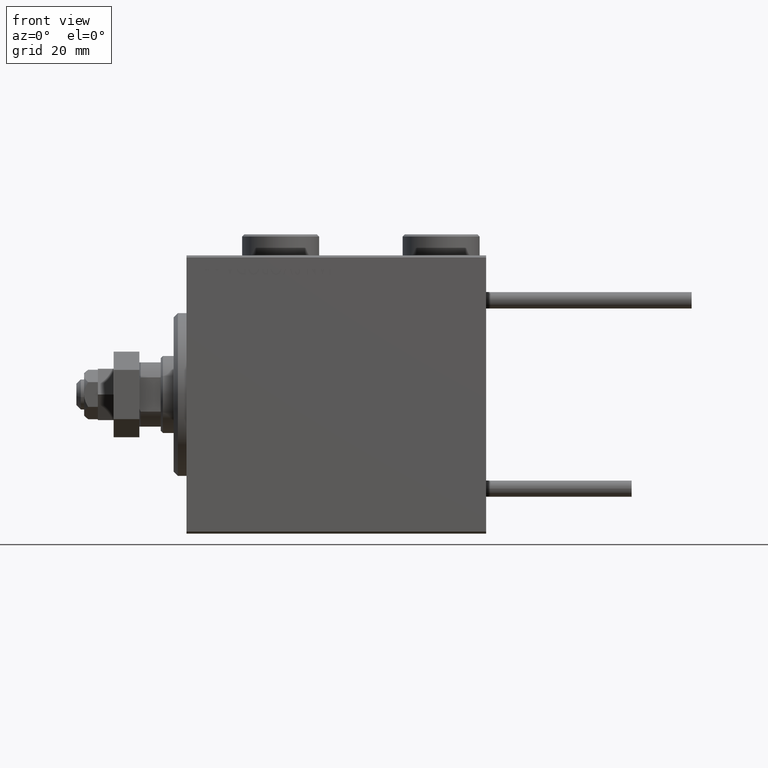
[diagram: clean part render]
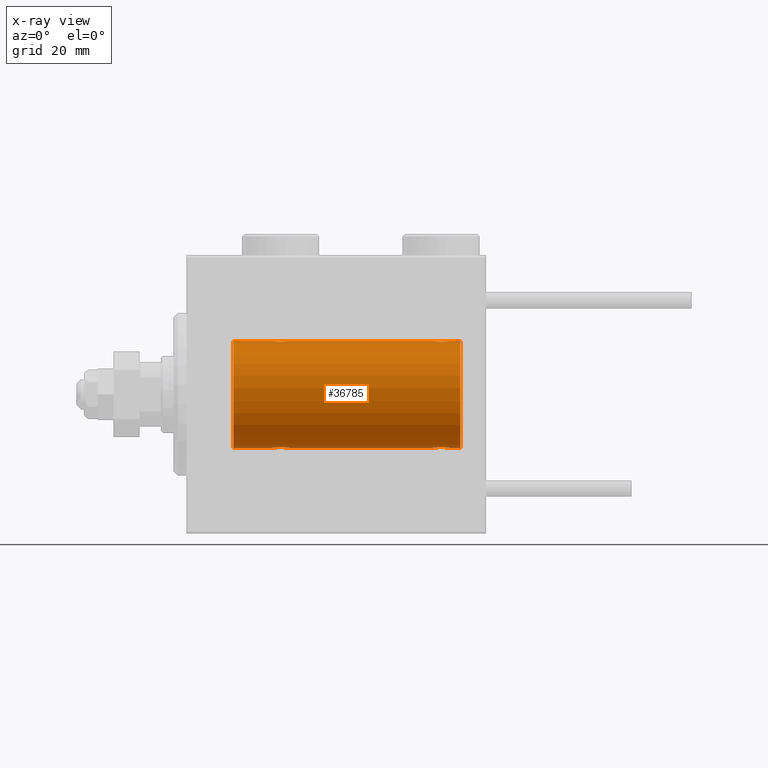
[diagram: x-ray — body ghosted, one internal face saturated and labeled with its STEP entity id]
A machine part, front view, then the same camera in x-ray: the body is ghosted and one INTERNAL B-rep face — a face not visible from any outside direction — is saturated and labeled: STEP entity #36785.
In plain terms, the highlighted cylindrical surface (partial cylindrical patch) has radius 12.5 mm, axis along (-1, -0, -0).
Its self-contained STEP definition (entity closure, byte-faithful):
#113 = CARTESIAN_POINT ( 'NONE',  ( 61.50000000000000711, -7.215738317004035941E-16, 12.50000000000000000 ) ) ;
#305 = LINE ( 'NONE', #12264, #52333 ) ;
#362 = CARTESIAN_POINT ( 'NONE',  ( 10.99999999999999645, 0.000000000000000000, 12.50000000000000000 ) ) ;
#760 = CARTESIAN_POINT ( 'NONE',  ( 57.55255659427669457, -0.5247436444070353589, 12.49130933415156441 ) ) ;
#791 = CYLINDRICAL_SURFACE ( 'NONE', #12924, 12.50000000000000000 ) ;
#945 = VERTEX_POINT ( 'NONE', #50204 ) ;
#1240 = CARTESIAN_POINT ( 'NONE',  ( 23.74662136620892383, -1.008535157355842538, 12.46157701909767646 ) ) ;
#1279 = EDGE_CURVE ( 'NONE', #48360, #1606, #36284, .T. ) ;
#1280 = CARTESIAN_POINT ( 'NONE',  ( 58.17700056892267924, -1.505544071529938632, 12.40934942683853670 ) ) ;
#1288 = VECTOR ( 'NONE', #21541, 1000.000000000000000 ) ;
#1510 = CARTESIAN_POINT ( 'NONE',  ( 24.00000000000000000, -0.2646816682749787430, 12.50000000000000178 ) ) ;
#1547 = CARTESIAN_POINT ( 'NONE',  ( 60.50099792098509255, -1.736403706023274651, 12.37902502246767966 ) ) ;
#1606 = VERTEX_POINT ( 'NONE', #31441 ) ;
#1773 = CARTESIAN_POINT ( 'NONE',  ( 20.67700056892266502, -1.505544071529935968, 12.40934942683853670 ) ) ;
#1807 = CARTESIAN_POINT ( 'NONE',  ( 58.85356103036409081, -1.897190184049188932, 12.35529285772521924 ) ) ;
#2122 = EDGE_CURVE ( 'NONE', #4107, #12798, #46385, .T. ) ;
#2235 = VERTEX_POINT ( 'NONE', #46363 ) ;
#2296 = CARTESIAN_POINT ( 'NONE',  ( 23.94665679898380617, -0.5275951738695671134, 12.49118442338578561 ) ) ;
#2334 = CARTESIAN_POINT ( 'NONE',  ( 59.23608626897564733, -1.986793270638198106, 12.34112317291865146 ) ) ;
#2703 = CARTESIAN_POINT ( 'NONE',  ( 19.99999999999999645, -3.213890523917628161E-15, -12.50000000000000000 ) ) ;
#3085 = CARTESIAN_POINT ( 'NONE',  ( 60.01961472357874783, -1.935716533151644381, -12.34923763528284724 ) ) ;
#3359 = CARTESIAN_POINT ( 'NONE',  ( 64.00000000000000000, 1.530808498934191521E-15, -12.50000000000000000 ) ) ;
#4107 = VERTEX_POINT ( 'NONE', #27990 ) ;
#4290 = LINE ( 'NONE', #12780, #48329 ) ;
#4375 = CARTESIAN_POINT ( 'NONE',  ( 59.36910032676577487, -2.000082296475570232, -12.33894933996983312 ) ) ;
#5048 = ORIENTED_EDGE ( 'NONE', *, *, #24487, .T. ) ;
#5226 = CARTESIAN_POINT ( 'NONE',  ( 21.11125274202960256, -1.796480516834690233, 12.37033750336835958 ) ) ;
#5267 = CARTESIAN_POINT ( 'NONE',  ( 57.91018909771712231, -1.220538259806350112, 12.44075068685996932 ) ) ;
#5497 = CARTESIAN_POINT ( 'NONE',  ( 24.00000000000000000, -4.527848004210791175E-16, 12.50000000000000000 ) ) ;
#6023 = CARTESIAN_POINT ( 'NONE',  ( 22.13089967323422869, -2.000082296475568011, 12.33894933996983134 ) ) ;
#6278 = CARTESIAN_POINT ( 'NONE',  ( 22.64425278797729391, -1.897913903092048438, 12.35518060345725111 ) ) ;
#6389 = VERTEX_POINT ( 'NONE', #2703 ) ;
#6579 = ORIENTED_EDGE ( 'NONE', *, *, #21406, .T. ) ;
#6710 = CARTESIAN_POINT ( 'NONE',  ( 23.00345574076691335, -1.734959850168410256, -12.37922718965050528 ) ) ;
#7044 = CARTESIAN_POINT ( 'NONE',  ( 60.14643896963591629, -1.897190184049190043, -12.35529285772521391 ) ) ;
#7292 = ORIENTED_EDGE ( 'NONE', *, *, #42447, .T. ) ;
#7566 = CARTESIAN_POINT ( 'NONE',  ( 61.44744340572331254, -0.5247436444070329165, -12.49130933415156797 ) ) ;
#7738 = CARTESIAN_POINT ( 'NONE',  ( 23.22027149897420628, -1.589951752150275732, -12.39868561261689273 ) ) ;
#8081 = CARTESIAN_POINT ( 'NONE',  ( 60.82299943107732787, -1.505544071529934858, -12.40934942683853492 ) ) ;
#8345 = CARTESIAN_POINT ( 'NONE',  ( 59.63340250451296498, -1.999916920503821194, -12.33897614545467825 ) ) ;
#8376 = VERTEX_POINT ( 'NONE', #113 ) ;
#8761 = LINE ( 'NONE', #25262, #1288 ) ;
#8785 = DIRECTION ( 'NONE',  ( -1.000000000000000000, -0.000000000000000000, -0.000000000000000000 ) ) ;
#9406 = CARTESIAN_POINT ( 'NONE',  ( 57.50000000000000000, -7.533308568696040923E-15, -12.50000000000000000 ) ) ;
#9772 = CARTESIAN_POINT ( 'NONE',  ( 59.63089967323423934, -2.000082296475567567, 12.33894933996983134 ) ) ;
#10030 = CARTESIAN_POINT ( 'NONE',  ( 61.44665679898378130, -0.5275951738695680016, 12.49118442338578205 ) ) ;
#10290 = CARTESIAN_POINT ( 'NONE',  ( 61.09744774691021263, -1.231226695485369671, 12.44059298055987917 ) ) ;
#10552 = CARTESIAN_POINT ( 'NONE',  ( 60.82116712851446749, -1.507135374967701003, 12.40915432986587419 ) ) ;
#11308 = DIRECTION ( 'NONE',  ( -1.000000000000000000, -0.000000000000000000, -0.000000000000000000 ) ) ;
#11351 = EDGE_CURVE ( 'NONE', #2235, #6389, #17115, .T. ) ;
#11734 = CARTESIAN_POINT ( 'NONE',  ( 23.50722151467992660, -1.321088093821078502, -12.43033959299025248 ) ) ;
#12264 = CARTESIAN_POINT ( 'NONE',  ( 64.00000000000000000, 0.000000000000000000, 12.50000000000000000 ) ) ;
#12337 = CARTESIAN_POINT ( 'NONE',  ( 57.75337863379106551, -1.008535157355846090, -12.46157701909767290 ) ) ;
#12780 = CARTESIAN_POINT ( 'NONE',  ( 64.00000000000000000, 1.530808498934191521E-15, -12.50000000000000000 ) ) ;
#12798 = VERTEX_POINT ( 'NONE', #24382 ) ;
#12924 = AXIS2_PLACEMENT_3D ( 'NONE', #17529, #17012, #13530 ) ;
#13133 = CARTESIAN_POINT ( 'NONE',  ( 59.23906502714393696, -1.987194304939080336, -12.34105826212745960 ) ) ;
#13233 = CARTESIAN_POINT ( 'NONE',  ( 57.50000000000000000, -7.266434456262306043E-23, 12.50000000000000000 ) ) ;
#13399 = CARTESIAN_POINT ( 'NONE',  ( 58.49900207901491456, -1.736403706023276650, -12.37902502246767789 ) ) ;
#13460 = CARTESIAN_POINT ( 'NONE',  ( 20.20214393531741237, -0.8858253204748024467, 12.46915613403961309 ) ) ;
#13530 = DIRECTION ( 'NONE',  ( 0.000000000000000000, 0.000000000000000000, 1.000000000000000000 ) ) ;
#13719 = CARTESIAN_POINT ( 'NONE',  ( 22.26093497285607370, -1.987194304939079448, 12.34105826212746138 ) ) ;
#13983 = CARTESIAN_POINT ( 'NONE',  ( 21.48038527642126283, -1.935716533151644825, 12.34923763528284724 ) ) ;
#14284 = CARTESIAN_POINT ( 'NONE',  ( 58.61125274202960611, -1.796480516834688679, 12.37033750336835425 ) ) ;
#14380 = ORIENTED_EDGE ( 'NONE', *, *, #24442, .F. ) ;
#14609 = DIRECTION ( 'NONE',  ( -1.000000000000000000, 0.000000000000000000, 0.000000000000000000 ) ) ;
#14678 = CARTESIAN_POINT ( 'NONE',  ( 22.88874725797039389, -1.796480516834687347, -12.37033750336835247 ) ) ;
#14796 = CARTESIAN_POINT ( 'NONE',  ( 60.01693726697627085, -1.936441098420706775, 12.34912369794528608 ) ) ;
#16333 = CARTESIAN_POINT ( 'NONE',  ( 58.85574721202270609, -1.897913903092051324, -12.35518060345725289 ) ) ;
#16594 = CARTESIAN_POINT ( 'NONE',  ( 19.99999999999999645, -7.265724481447607133E-23, 12.50000000000000000 ) ) ;
#17012 = DIRECTION ( 'NONE',  ( -1.000000000000000000, -0.000000000000000000, -0.000000000000000000 ) ) ;
#17115 = B_SPLINE_CURVE_WITH_KNOTS ( 'NONE', 3,
 ( #23720, #19723, #31944, #35913, #52132, #48158, #11734, #27946, #7738, #6710, #14678, #30900, #18948, #35144, #48681, #32207, #24500, #25025, #36980, #41235, #28744, #29269, #45495, #20511, #28203, #36184, #21050, #28475 ),
 .UNSPECIFIED., .F., .F.,
 ( 4, 2, 2, 2, 2, 2, 2, 2, 2, 2, 2, 2, 2, 4 ),
 ( 0.006262980370572176700, 0.007045658964677373355, 0.007436998261729973851, 0.007828337558782575215, 0.008219676855835175711, 0.008611016152887776207, 0.009002355449940376703, 0.009393694746992977199, 0.009785034044045577695, 0.01017637334109817646, 0.01056771263815077869, 0.01095905193520337745, 0.01174173052930858711, 0.01252440912341379504 ),
 .UNSPECIFIED. ) ;
#17397 = CARTESIAN_POINT ( 'NONE',  ( 58.17883287148557514, -1.507135374967702557, -12.40915432986587241 ) ) ;
#17458 = CARTESIAN_POINT ( 'NONE',  ( 19.99999999999999289, -0.2612140938986765581, 12.50000000000000000 ) ) ;
#17497 = CARTESIAN_POINT ( 'NONE',  ( 58.27972850102579372, -1.589951752150273068, 12.39868561261688917 ) ) ;
#17529 = CARTESIAN_POINT ( 'NONE',  ( 64.00000000000000000, 0.000000000000000000, 0.000000000000000000 ) ) ;
#18015 = EDGE_CURVE ( 'NONE', #945, #1606, #48461, .T. ) ;
#18282 = CARTESIAN_POINT ( 'NONE',  ( 60.38616153879433313, -1.797736511708064144, 12.37015393445320655 ) ) ;
#18948 = CARTESIAN_POINT ( 'NONE',  ( 22.51961472357873717, -1.935716533151642826, -12.34923763528285257 ) ) ;
#19300 = CARTESIAN_POINT ( 'NONE',  ( 59.76391373102438109, -1.986793270638201214, -12.34112317291865324 ) ) ;
#19723 = CARTESIAN_POINT ( 'NONE',  ( 24.00000000000000711, -0.2612140938986747818, -12.50000000000000533 ) ) ;
#20511 = CARTESIAN_POINT ( 'NONE',  ( 20.40255225308977671, -1.231226695485369893, -12.44059298055988627 ) ) ;
#21050 = CARTESIAN_POINT ( 'NONE',  ( 20.00000000000000000, -0.2646816682749822958, -12.50000000000000000 ) ) ;
#21391 = ORIENTED_EDGE ( 'NONE', *, *, #22484, .F. ) ;
#21406 = EDGE_CURVE ( 'NONE', #12798, #2235, #8761, .T. ) ;
#21443 = CARTESIAN_POINT ( 'NONE',  ( 64.00000000000000000, 0.000000000000000000, 12.50000000000000000 ) ) ;
#21449 = CARTESIAN_POINT ( 'NONE',  ( 21.73608626897565799, -1.986793270638199438, 12.34112317291865502 ) ) ;
#21487 = CARTESIAN_POINT ( 'NONE',  ( 57.99277848532008051, -1.321088093821082721, 12.43033959299025426 ) ) ;
#21541 = DIRECTION ( 'NONE',  ( -1.000000000000000000, -0.000000000000000000, -0.000000000000000000 ) ) ;
#21709 = CIRCLE ( 'NONE', #51410, 12.50000000000000000 ) ;
#22484 = EDGE_CURVE ( 'NONE', #25152, #23909, #21709, .T. ) ;
#22504 = CARTESIAN_POINT ( 'NONE',  ( 23.32116712851443907, -1.507135374967700558, 12.40915432986587064 ) ) ;
#22544 = CARTESIAN_POINT ( 'NONE',  ( 61.24662136620892028, -1.008535157355842760, 12.46157701909767468 ) ) ;
#22572 = DIRECTION ( 'NONE',  ( -1.000000000000000000, -0.000000000000000000, -0.000000000000000000 ) ) ;
#23593 = VECTOR ( 'NONE', #22572, 1000.000000000000000 ) ;
#23720 = CARTESIAN_POINT ( 'NONE',  ( 24.00000000000000000, 1.530808426277417854E-15, -12.50000000000000000 ) ) ;
#23909 = VERTEX_POINT ( 'NONE', #21443 ) ;
#23980 = DIRECTION ( 'NONE',  ( 0.000000000000000000, 0.000000000000000000, 1.000000000000000000 ) ) ;
#24382 = CARTESIAN_POINT ( 'NONE',  ( 57.50000000000000000, -7.533308568696040923E-15, -12.50000000000000000 ) ) ;
#24442 = EDGE_CURVE ( 'NONE', #23909, #8376, #305, .T. ) ;
#24487 = EDGE_CURVE ( 'NONE', #37644, #25235, #30265, .T. ) ;
#24500 = CARTESIAN_POINT ( 'NONE',  ( 21.73906502714393341, -1.987194304939077671, -12.34105826212746138 ) ) ;
#24768 = DIRECTION ( 'NONE',  ( -1.000000000000000000, 0.000000000000000000, 0.000000000000000000 ) ) ;
#24842 = CARTESIAN_POINT ( 'NONE',  ( 57.50000000000000000, -0.2646816682749856819, -12.50000000000000711 ) ) ;
#25025 = CARTESIAN_POINT ( 'NONE',  ( 21.48306273302371494, -1.936441098420706997, -12.34912369794528431 ) ) ;
#25152 = VERTEX_POINT ( 'NONE', #34433 ) ;
#25235 = VERTEX_POINT ( 'NONE', #362 ) ;
#25262 = CARTESIAN_POINT ( 'NONE',  ( 64.00000000000000000, 1.530808498934191521E-15, -12.50000000000000000 ) ) ;
#25629 = CARTESIAN_POINT ( 'NONE',  ( 58.98306273302370784, -1.936441098420709883, -12.34912369794528786 ) ) ;
#25694 = CARTESIAN_POINT ( 'NONE',  ( 20.49277848532005919, -1.321088093821079834, 12.43033959299025071 ) ) ;
#25965 = CARTESIAN_POINT ( 'NONE',  ( 20.99654425923307954, -1.734959850168413587, 12.37922718965051061 ) ) ;
#26225 = CARTESIAN_POINT ( 'NONE',  ( 20.05255659427670167, -0.5247436444070346928, 12.49130933415156619 ) ) ;
#26515 = CARTESIAN_POINT ( 'NONE',  ( 60.14425278797731522, -1.897913903092049548, 12.35518060345725289 ) ) ;
#26541 = LINE ( 'NONE', #42756, #23593 ) ;
#27252 = CARTESIAN_POINT ( 'NONE',  ( 60.38874725797041521, -1.796480516834690455, -12.37033750336835780 ) ) ;
#27354 = EDGE_CURVE ( 'NONE', #48360, #25235, #26541, .T. ) ;
#27946 = CARTESIAN_POINT ( 'NONE',  ( 23.32299943107732432, -1.505544071529935080, -12.40934942683853848 ) ) ;
#27990 = CARTESIAN_POINT ( 'NONE',  ( 61.50000000000000711, 1.530808426270318106E-15, -12.50000000000000000 ) ) ;
#28203 = CARTESIAN_POINT ( 'NONE',  ( 20.25337863379106551, -1.008535157355840761, -12.46157701909767646 ) ) ;
#28475 = CARTESIAN_POINT ( 'NONE',  ( 19.99999999999999645, -3.213890523917628161E-15, -12.50000000000000000 ) ) ;
#28744 = CARTESIAN_POINT ( 'NONE',  ( 20.99900207901491811, -1.736403706023270654, -12.37902502246767966 ) ) ;
#29269 = CARTESIAN_POINT ( 'NONE',  ( 20.78145880458060901, -1.591305132013878021, -12.39851226212236313 ) ) ;
#29349 = CARTESIAN_POINT ( 'NONE',  ( 58.61383846120568109, -1.797736511708066143, -12.37015393445320655 ) ) ;
#29448 = CARTESIAN_POINT ( 'NONE',  ( 57.50000000000001421, -0.2612140938986763361, 12.50000000000000355 ) ) ;
#29619 = CARTESIAN_POINT ( 'NONE',  ( 57.90255225308975895, -1.231226695485371669, -12.44059298055988094 ) ) ;
#29679 = CARTESIAN_POINT ( 'NONE',  ( 22.51693726697628151, -1.936441098420708773, 12.34912369794528608 ) ) ;
#29786 = CARTESIAN_POINT ( 'NONE',  ( 64.00000000000000000, 0.000000000000000000, 0.000000000000000000 ) ) ;
#30233 = CARTESIAN_POINT ( 'NONE',  ( 60.71854119541938388, -1.591305132013881796, 12.39851226212235957 ) ) ;
#30265 = CIRCLE ( 'NONE', #50644, 12.50000000000000000 ) ;
#30900 = CARTESIAN_POINT ( 'NONE',  ( 22.64643896963591985, -1.897190184049187378, -12.35529285772521924 ) ) ;
#31171 = ORIENTED_EDGE ( 'NONE', *, *, #11351, .T. ) ;
#31252 = CARTESIAN_POINT ( 'NONE',  ( 60.50345574076694533, -1.734959850168411366, -12.37922718965050883 ) ) ;
#31441 = CARTESIAN_POINT ( 'NONE',  ( 24.00000000000000000, -4.527848004210791175E-16, 12.50000000000000000 ) ) ;
#31508 = CARTESIAN_POINT ( 'NONE',  ( 61.23563078019578398, -1.002396200863560738, -12.46022444231050841 ) ) ;
#31944 = CARTESIAN_POINT ( 'NONE',  ( 23.94744340572329833, -0.5247436444070328054, -12.49130933415156619 ) ) ;
#32207 = CARTESIAN_POINT ( 'NONE',  ( 21.86910032676576421, -2.000082296475566679, -12.33894933996983490 ) ) ;
#33013 = DIRECTION ( 'NONE',  ( -1.000000000000000000, -0.000000000000000000, -0.000000000000000000 ) ) ;
#33089 = CARTESIAN_POINT ( 'NONE',  ( 57.55334320101621159, -0.5275951738695725535, -12.49118442338578561 ) ) ;
#33187 = CARTESIAN_POINT ( 'NONE',  ( 57.70214393531741592, -0.8858253204748025578, 12.46915613403960954 ) ) ;
#33675 = CARTESIAN_POINT ( 'NONE',  ( 23.00099792098508189, -1.736403706023272431, 12.37902502246767966 ) ) ;
#34188 = CARTESIAN_POINT ( 'NONE',  ( 21.35356103036408371, -1.897190184049189599, 12.35529285772521391 ) ) ;
#34433 = CARTESIAN_POINT ( 'NONE',  ( 64.00000000000000000, 1.530808498934191521E-15, -12.50000000000000000 ) ) ;
#34576 = EDGE_CURVE ( 'NONE', #6389, #37644, #47738, .T. ) ;
#35144 = CARTESIAN_POINT ( 'NONE',  ( 22.26391373102435622, -1.986793270638196551, -12.34112317291864791 ) ) ;
#35652 = ORIENTED_EDGE ( 'NONE', *, *, #47352, .T. ) ;
#35913 = CARTESIAN_POINT ( 'NONE',  ( 23.79785606468258052, -0.8858253204748003373, -12.46915613403960954 ) ) ;
#36184 = CARTESIAN_POINT ( 'NONE',  ( 20.05334320101619738, -0.5275951738695662252, -12.49118442338578561 ) ) ;
#36264 = CARTESIAN_POINT ( 'NONE',  ( 61.50000000000000711, 1.530808426270318106E-15, -12.50000000000000000 ) ) ;
#36284 = B_SPLINE_CURVE_WITH_KNOTS ( 'NONE', 3,
 ( #41904, #17458, #26225, #13460, #46423, #50401, #25694, #1773, #49885, #25965, #5226, #34188, #13983, #21449, #37646, #6023, #13719, #29679, #6278, #42430, #33675, #38432, #22504, #38697, #1240, #2296, #1510, #5497 ),
 .UNSPECIFIED., .F., .F.,
 ( 4, 2, 2, 2, 2, 2, 2, 2, 2, 2, 2, 2, 2, 4 ),
 ( 0.006262980370572172363, 0.007045658964677369886, 0.007436998261729971249, 0.007828337558782571745, 0.008219676855835172241, 0.008611016152887774472, 0.009002355449940373233, 0.009393694746992975464, 0.009785034044045575960, 0.01017637334109817646, 0.01056771263815077869, 0.01095905193520337918, 0.01174173052930858538, 0.01252440912341379504 ),
 .UNSPECIFIED. ) ;
#36458 = CARTESIAN_POINT ( 'NONE',  ( 10.99999999999999645, 0.000000000000000000, 0.000000000000000000 ) ) ;
#36527 = CARTESIAN_POINT ( 'NONE',  ( 60.72027149897421339, -1.589951752150274844, -12.39868561261689273 ) ) ;
#36785 = ADVANCED_FACE ( 'NONE', ( #37194 ), #791, .F. ) ;
#36980 = CARTESIAN_POINT ( 'NONE',  ( 21.35574721202270254, -1.897913903092047327, -12.35518060345725289 ) ) ;
#37194 = FACE_OUTER_BOUND ( 'NONE', #40836, .T. ) ;
#37644 = VERTEX_POINT ( 'NONE', #44592 ) ;
#37646 = CARTESIAN_POINT ( 'NONE',  ( 21.86659749548704212, -1.999916920503820306, 12.33897614545467647 ) ) ;
#38432 = CARTESIAN_POINT ( 'NONE',  ( 23.21854119541938033, -1.591305132013879131, 12.39851226212235957 ) ) ;
#38697 = CARTESIAN_POINT ( 'NONE',  ( 23.59744774691023039, -1.231226695485369893, 12.44059298055988272 ) ) ;
#40208 = B_SPLINE_CURVE_WITH_KNOTS ( 'NONE', 3,
 ( #13233, #29448, #760, #33187, #45677, #5267, #21487, #1280, #17497, #45942, #14284, #1807, #50439, #2334, #46201, #9772, #41943, #14796, #26515, #18282, #1547, #30233, #10552, #10290, #22544, #10030, #46458, #46717 ),
 .UNSPECIFIED., .F., .F.,
 ( 4, 2, 2, 2, 2, 2, 2, 2, 2, 2, 2, 2, 2, 4 ),
 ( 0.006262980370572174098, 0.007045658964677370753, 0.007436998261729972984, 0.007828337558782575215, 0.008219676855835175711, 0.008611016152887777941, 0.009002355449940380172, 0.009393694746992982403, 0.009785034044045584634, 0.01017637334109818686, 0.01056771263815078910, 0.01095905193520338959, 0.01174173052930859232, 0.01252440912341379678 ),
 .UNSPECIFIED. ) ;
#40212 = DIRECTION ( 'NONE',  ( -1.000000000000000000, -0.000000000000000000, -0.000000000000000000 ) ) ;
#40766 = VECTOR ( 'NONE', #11308, 1000.000000000000000 ) ;
#40836 = EDGE_LOOP ( 'NONE', ( #21391, #7292, #50926, #6579, #31171, #47922, #5048, #44352, #42352, #50336, #35652, #14380 ) ) ;
#41057 = CARTESIAN_POINT ( 'NONE',  ( 58.28145880458064454, -1.591305132013884238, -12.39851226212236313 ) ) ;
#41235 = CARTESIAN_POINT ( 'NONE',  ( 21.11383846120566332, -1.797736511708062368, -12.37015393445320122 ) ) ;
#41904 = CARTESIAN_POINT ( 'NONE',  ( 19.99999999999999645, -7.265724481447607133E-23, 12.50000000000000000 ) ) ;
#41943 = CARTESIAN_POINT ( 'NONE',  ( 59.76093497285608436, -1.987194304939078116, 12.34105826212746138 ) ) ;
#42352 = ORIENTED_EDGE ( 'NONE', *, *, #1279, .T. ) ;
#42430 = CARTESIAN_POINT ( 'NONE',  ( 22.88616153879432602, -1.797736511708064144, 12.37015393445320299 ) ) ;
#42447 = EDGE_CURVE ( 'NONE', #25152, #4107, #4290, .T. ) ;
#42756 = CARTESIAN_POINT ( 'NONE',  ( 64.00000000000000000, 0.000000000000000000, 12.50000000000000000 ) ) ;
#43949 = CARTESIAN_POINT ( 'NONE',  ( 64.00000000000000000, 0.000000000000000000, 12.50000000000000000 ) ) ;
#43988 = CARTESIAN_POINT ( 'NONE',  ( 61.50000000000000711, -0.2612140938986743932, -12.50000000000000000 ) ) ;
#44352 = ORIENTED_EDGE ( 'NONE', *, *, #27354, .F. ) ;
#44508 = CARTESIAN_POINT ( 'NONE',  ( 61.00722151467995502, -1.321088093821077614, -12.43033959299025248 ) ) ;
#44592 = CARTESIAN_POINT ( 'NONE',  ( 10.99999999999999645, 1.530808498934191521E-15, -12.50000000000000000 ) ) ;
#45495 = CARTESIAN_POINT ( 'NONE',  ( 20.67883287148555382, -1.507135374967699670, -12.40915432986587064 ) ) ;
#45677 = CARTESIAN_POINT ( 'NONE',  ( 57.76436921980423733, -1.002396200863562736, 12.46022444231050663 ) ) ;
#45942 = CARTESIAN_POINT ( 'NONE',  ( 58.49654425923307599, -1.734959850168409812, 12.37922718965050706 ) ) ;
#46201 = CARTESIAN_POINT ( 'NONE',  ( 59.36659749548705634, -1.999916920503820750, 12.33897614545467469 ) ) ;
#46363 = CARTESIAN_POINT ( 'NONE',  ( 24.00000000000000000, 1.530808426277417854E-15, -12.50000000000000000 ) ) ;
#46385 = B_SPLINE_CURVE_WITH_KNOTS ( 'NONE', 3,
 ( #36264, #43988, #7566, #48498, #31508, #47461, #44508, #8081, #36527, #31252, #27252, #7044, #3085, #19300, #8345, #4375, #13133, #25629, #16333, #29349, #13399, #41057, #17397, #29619, #12337, #33089, #24842, #9406 ),
 .UNSPECIFIED., .F., .F.,
 ( 4, 2, 2, 2, 2, 2, 2, 2, 2, 2, 2, 2, 2, 4 ),
 ( 0.006262980370572173230, 0.007045658964677369018, 0.007436998261729971249, 0.007828337558782573480, 0.008219676855835175711, 0.008611016152887777941, 0.009002355449940380172, 0.009393694746992982403, 0.009785034044045584634, 0.01017637334109818686, 0.01056771263815078910, 0.01095905193520339133, 0.01174173052930859579, 0.01252440912341380025 ),
 .UNSPECIFIED. ) ;
#46423 = CARTESIAN_POINT ( 'NONE',  ( 20.26436921980423023, -1.002396200863561404, 12.46022444231050841 ) ) ;
#46458 = CARTESIAN_POINT ( 'NONE',  ( 61.50000000000000000, -0.2646816682749791316, 12.50000000000000000 ) ) ;
#46717 = CARTESIAN_POINT ( 'NONE',  ( 61.50000000000000711, -7.215738317004035941E-16, 12.50000000000000000 ) ) ;
#47352 = EDGE_CURVE ( 'NONE', #945, #8376, #40208, .T. ) ;
#47461 = CARTESIAN_POINT ( 'NONE',  ( 61.08981090228289901, -1.220538259806349446, -12.44075068685996932 ) ) ;
#47738 = LINE ( 'NONE', #3359, #40766 ) ;
#47922 = ORIENTED_EDGE ( 'NONE', *, *, #34576, .T. ) ;
#48158 = CARTESIAN_POINT ( 'NONE',  ( 23.58981090228289546, -1.220538259806347225, -12.44075068685997287 ) ) ;
#48329 = VECTOR ( 'NONE', #8785, 1000.000000000000000 ) ;
#48360 = VERTEX_POINT ( 'NONE', #16594 ) ;
#48461 = LINE ( 'NONE', #43949, #48828 ) ;
#48498 = CARTESIAN_POINT ( 'NONE',  ( 61.29785606468259118, -0.8858253204748017806, -12.46915613403961309 ) ) ;
#48681 = CARTESIAN_POINT ( 'NONE',  ( 22.13340250451295077, -1.999916920503817197, -12.33897614545467469 ) ) ;
#48828 = VECTOR ( 'NONE', #40212, 1000.000000000000000 ) ;
#49885 = CARTESIAN_POINT ( 'NONE',  ( 20.77972850102578661, -1.589951752150277287, 12.39868561261688917 ) ) ;
#50204 = CARTESIAN_POINT ( 'NONE',  ( 57.50000000000000000, -7.266434456262306043E-23, 12.50000000000000000 ) ) ;
#50336 = ORIENTED_EDGE ( 'NONE', *, *, #18015, .F. ) ;
#50401 = CARTESIAN_POINT ( 'NONE',  ( 20.41018909771710454, -1.220538259806349446, 12.44075068685996932 ) ) ;
#50439 = CARTESIAN_POINT ( 'NONE',  ( 58.98038527642127349, -1.935716533151643493, 12.34923763528284901 ) ) ;
#50513 = DIRECTION ( 'NONE',  ( 0.000000000000000000, 0.000000000000000000, 1.000000000000000000 ) ) ;
#50644 = AXIS2_PLACEMENT_3D ( 'NONE', #36458, #24768, #23980 ) ;
#50926 = ORIENTED_EDGE ( 'NONE', *, *, #2122, .T. ) ;
#51410 = AXIS2_PLACEMENT_3D ( 'NONE', #29786, #14609, #50513 ) ;
#52132 = CARTESIAN_POINT ( 'NONE',  ( 23.73563078019576977, -1.002396200863559184, -12.46022444231050663 ) ) ;
#52333 = VECTOR ( 'NONE', #33013, 1000.000000000000000 ) ;